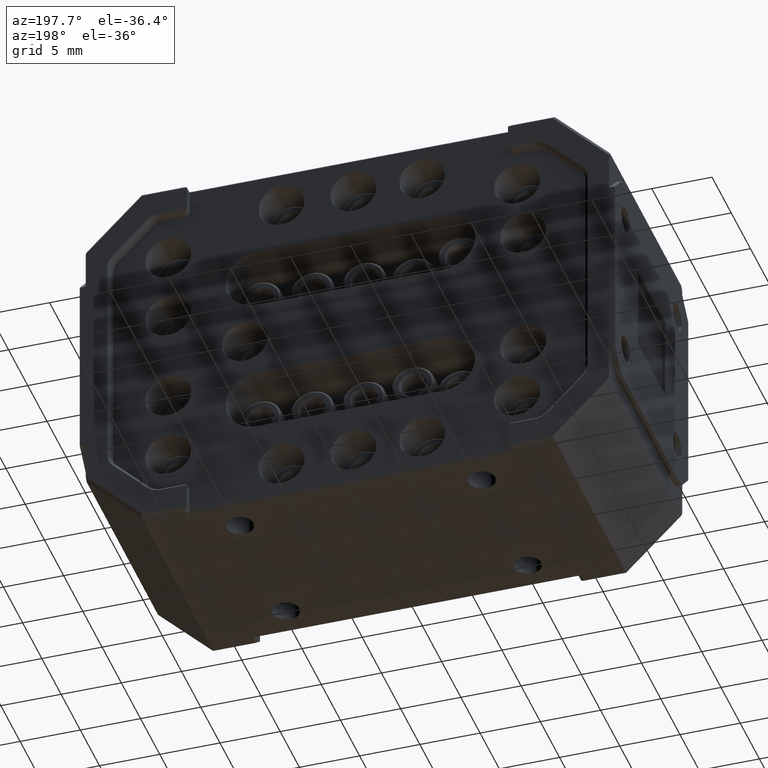
[diagram: clean part render]
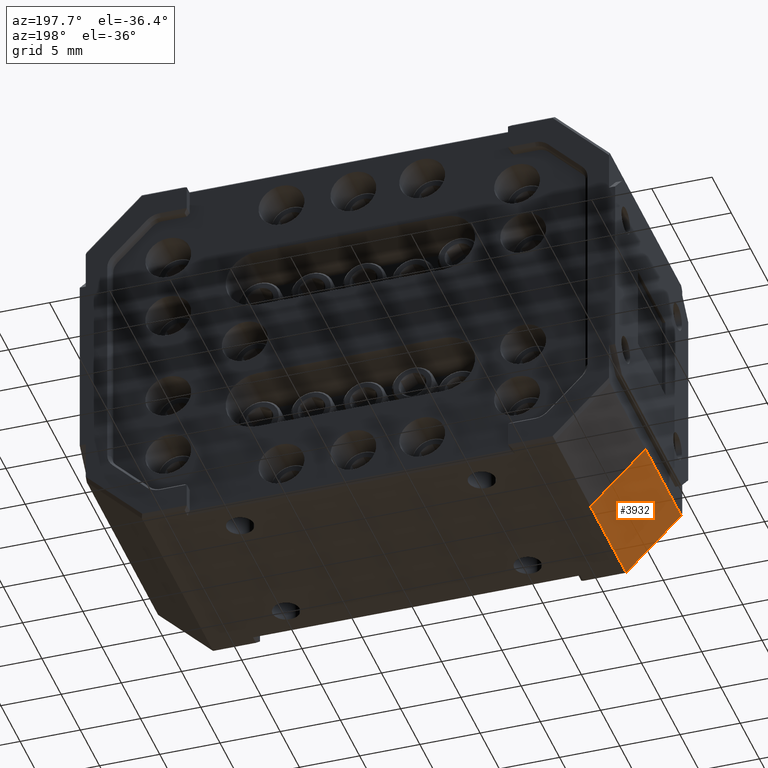
[diagram: same view with one face highlighted and labeled with its STEP entity id]
A machine part, auxiliary view. The second image highlights one B-rep face of the part: STEP entity #3932.
In plain terms, the highlighted planar face has unit normal (0.7071, -0, 0.7071).
Its self-contained STEP definition (entity closure, byte-faithful):
#505 = ORIENTED_EDGE ( 'NONE', *, *, #21640, .T. ) ;
#1377 = LINE ( 'NONE', #5524, #16306 ) ;
#1700 = VECTOR ( 'NONE', #15492, 39.37007874015748854 ) ;
#1858 = CARTESIAN_POINT ( 'NONE',  ( -0.8550000000000009814, -0.3650000000000002132, -0.4449999999999995071 ) ) ;
#3514 = EDGE_CURVE ( 'NONE', #15787, #20662, #1377, .T. ) ;
#3932 = ADVANCED_FACE ( 'NONE', ( #7564 ), #15494, .F. ) ;
#3969 = DIRECTION ( 'NONE',  ( -0.7071067811865465735, 0.000000000000000000, 0.7071067811865484609 ) ) ;
#5524 = CARTESIAN_POINT ( 'NONE',  ( -0.6750000000000007105, -0.3750000000000000555, -0.6250000000000006661 ) ) ;
#6067 = AXIS2_PLACEMENT_3D ( 'NONE', #19929, #15768, #24237 ) ;
#6489 = VECTOR ( 'NONE', #3969, 39.37007874015748854 ) ;
#7142 = CARTESIAN_POINT ( 'NONE',  ( -0.6500000000000016875, 0.000000000000000000, -0.6500000000000000222 ) ) ;
#7564 = FACE_OUTER_BOUND ( 'NONE', #17418, .T. ) ;
#7608 = ORIENTED_EDGE ( 'NONE', *, *, #3514, .F. ) ;
#8453 = DIRECTION ( 'NONE',  ( -0.000000000000000000, 1.000000000000000000, -0.000000000000000000 ) ) ;
#8738 = VECTOR ( 'NONE', #8453, 39.37007874015748143 ) ;
#11005 = EDGE_CURVE ( 'NONE', #20662, #24859, #19641, .T. ) ;
#11173 = LINE ( 'NONE', #27441, #8738 ) ;
#11776 = CARTESIAN_POINT ( 'NONE',  ( -0.6750000000000007105, -0.3650000000000001577, -0.6250000000000006661 ) ) ;
#13955 = CARTESIAN_POINT ( 'NONE',  ( -0.8750000000000009992, -0.3650000000000001577, -0.4249999999999993783 ) ) ;
#15492 = DIRECTION ( 'NONE',  ( -0.7071067811865465735, 0.000000000000000000, 0.7071067811865484609 ) ) ;
#15494 = PLANE ( 'NONE',  #6067 ) ;
#15768 = DIRECTION ( 'NONE',  ( 0.7071067811865484609, -0.000000000000000000, 0.7071067811865465735 ) ) ;
#15787 = VERTEX_POINT ( 'NONE', #11776 ) ;
#16226 = EDGE_CURVE ( 'NONE', #15787, #18553, #26695, .T. ) ;
#16306 = VECTOR ( 'NONE', #22457, 39.37007874015748143 ) ;
#17418 = EDGE_LOOP ( 'NONE', ( #19333, #7608, #27236, #505 ) ) ;
#18553 = VERTEX_POINT ( 'NONE', #1858 ) ;
#19333 = ORIENTED_EDGE ( 'NONE', *, *, #11005, .F. ) ;
#19641 = LINE ( 'NONE', #7142, #1700 ) ;
#19929 = CARTESIAN_POINT ( 'NONE',  ( -0.6750000000000007105, -0.3750000000000000555, -0.6250000000000006661 ) ) ;
#20662 = VERTEX_POINT ( 'NONE', #22738 ) ;
#21640 = EDGE_CURVE ( 'NONE', #18553, #24859, #11173, .T. ) ;
#22457 = DIRECTION ( 'NONE',  ( 0.000000000000000000, 1.000000000000000000, 0.000000000000000000 ) ) ;
#22738 = CARTESIAN_POINT ( 'NONE',  ( -0.6750000000000007105, 0.000000000000000000, -0.6250000000000006661 ) ) ;
#24237 = DIRECTION ( 'NONE',  ( 0.000000000000000000, 1.000000000000000000, 0.000000000000000000 ) ) ;
#24267 = CARTESIAN_POINT ( 'NONE',  ( -0.8550000000000009814, 0.000000000000000000, -0.4449999999999995071 ) ) ;
#24859 = VERTEX_POINT ( 'NONE', #24267 ) ;
#26695 = LINE ( 'NONE', #13955, #6489 ) ;
#27236 = ORIENTED_EDGE ( 'NONE', *, *, #16226, .T. ) ;
#27441 = CARTESIAN_POINT ( 'NONE',  ( -0.8550000000000009814, -0.3750000000000000555, -0.4449999999999995071 ) ) ;